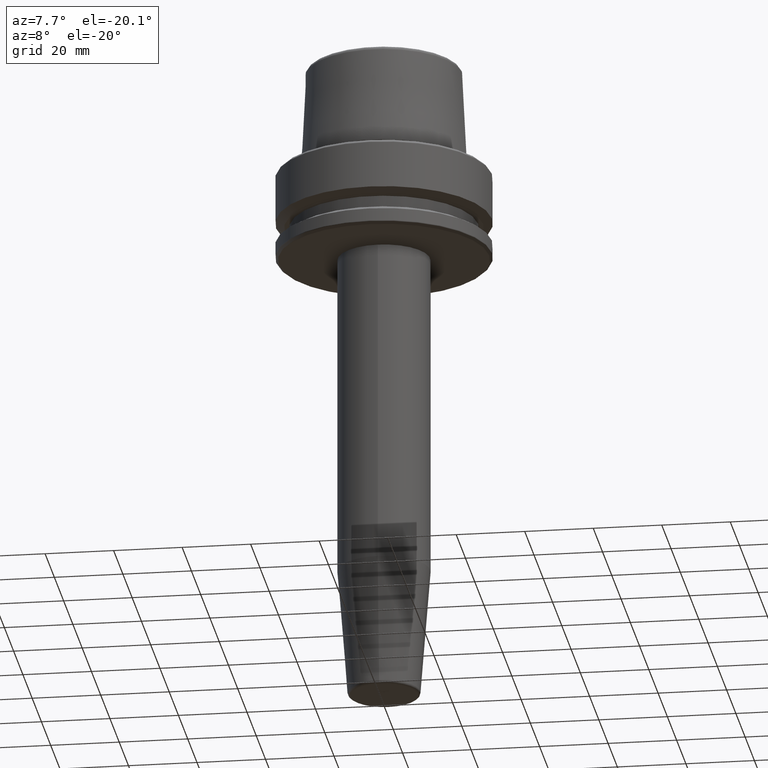
[diagram: clean part render]
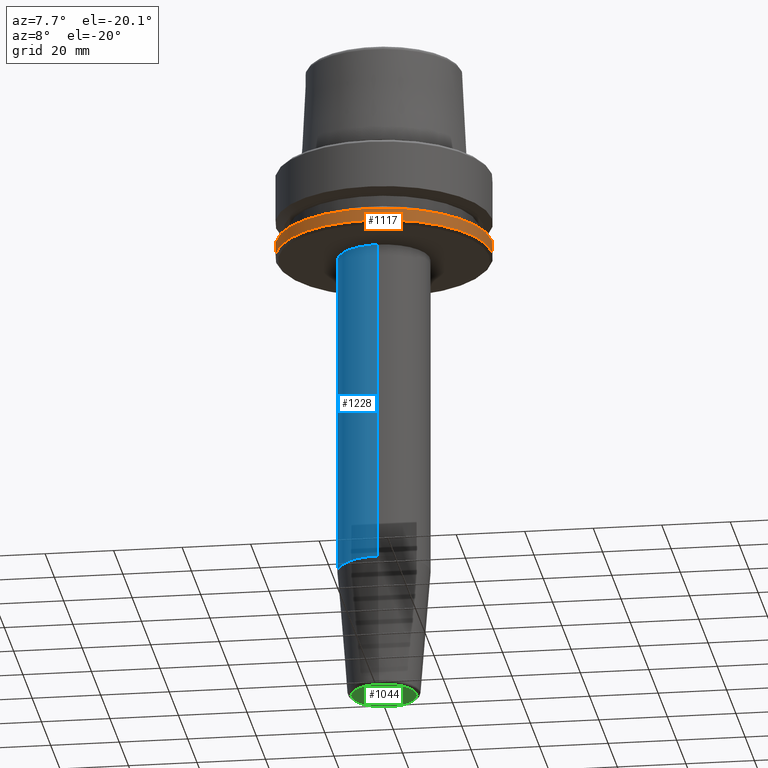
[diagram: same view with three faces highlighted in distinct colors, each labeled with its STEP entity id]
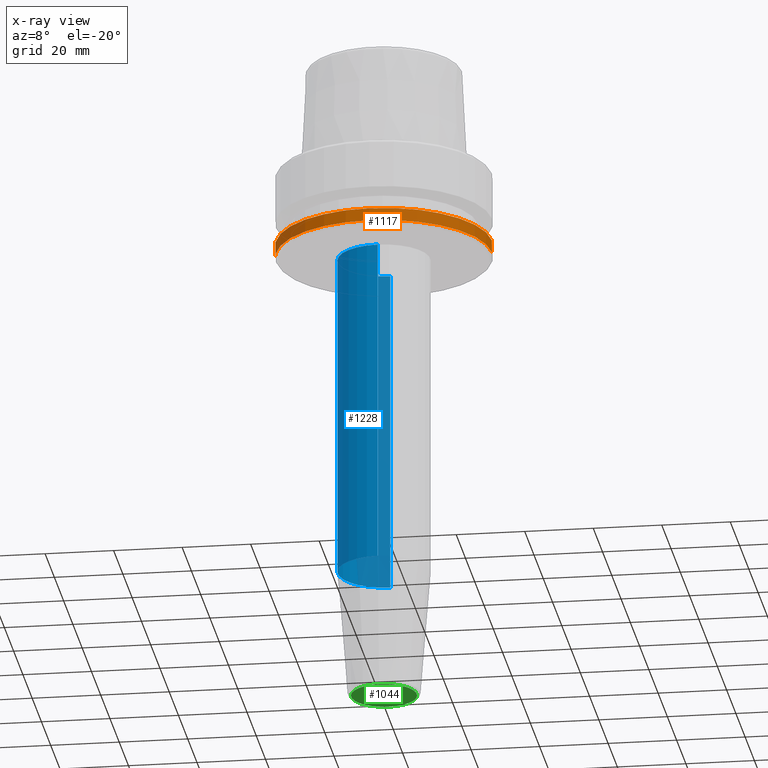
[diagram: x-ray of the same camera — body ghosted, the three highlighted faces saturated]
A machine part, auxiliary view with three faces highlighted in distinct colors.
The next image is the same camera in x-ray (body ghosted, the three faces saturated) — at least one of them is partly hidden behind the body in this view.
Their STEP definitions:

[orange] entity #1117 — the highlighted cylindrical surface (partial cylindrical patch) has radius 31.5 mm, axis along (-0, -0, 1).
#2 = VERTEX_POINT ( 'NONE', #214 ) ;
#14 = VECTOR ( 'NONE', #495, 1000.000000000000000 ) ;
#47 = CARTESIAN_POINT ( 'NONE',  ( 31.50000000000000000, 0.0000000000000000000, 78.96908074195309300 ) ) ;
#53 = CARTESIAN_POINT ( 'NONE',  ( 0.0000000000000000000, 0.0000000000000000000, -25.03431457505077200 ) ) ;
#74 = CARTESIAN_POINT ( 'NONE',  ( 0.0000000000000000000, 0.0000000000000000000, 78.96908074195309300 ) ) ;
#118 = EDGE_CURVE ( 'NONE', #1094, #955, #372, .T. ) ;
#205 = ORIENTED_EDGE ( 'NONE', *, *, #743, .T. ) ;
#214 = CARTESIAN_POINT ( 'NONE',  ( 31.50000000000000000, 0.0000000000000000000, -21.37749907475931700 ) ) ;
#259 = DIRECTION ( 'NONE',  ( -0.0000000000000000000, -0.0000000000000000000, 1.000000000000000000 ) ) ;
#308 = AXIS2_PLACEMENT_3D ( 'NONE', #74, #675, #1145 ) ;
#372 = CIRCLE ( 'NONE', #817, 31.50000000000000000 ) ;
#399 = CYLINDRICAL_SURFACE ( 'NONE', #308, 31.50000000000000000 ) ;
#431 = FACE_OUTER_BOUND ( 'NONE', #784, .T. ) ;
#439 = ORIENTED_EDGE ( 'NONE', *, *, #480, .F. ) ;
#480 = EDGE_CURVE ( 'NONE', #1094, #574, #532, .T. ) ;
#495 = DIRECTION ( 'NONE',  ( -0.0000000000000000000, -0.0000000000000000000, 1.000000000000000000 ) ) ;
#532 = LINE ( 'NONE', #594, #14 ) ;
#565 = CARTESIAN_POINT ( 'NONE',  ( 0.0000000000000000000, 0.0000000000000000000, -21.37749907475931700 ) ) ;
#574 = VERTEX_POINT ( 'NONE', #897 ) ;
#594 = CARTESIAN_POINT ( 'NONE',  ( -31.50000000000000000, 3.857637417314162700E-015, 78.96908074195309300 ) ) ;
#607 = ORIENTED_EDGE ( 'NONE', *, *, #1059, .F. ) ;
#660 = VECTOR ( 'NONE', #745, 1000.000000000000000 ) ;
#666 = DIRECTION ( 'NONE',  ( 1.000000000000000000, 0.0000000000000000000, 0.0000000000000000000 ) ) ;
#675 = DIRECTION ( 'NONE',  ( -0.0000000000000000000, -0.0000000000000000000, 1.000000000000000000 ) ) ;
#724 = CIRCLE ( 'NONE', #771, 31.50000000000000000 ) ;
#743 = EDGE_CURVE ( 'NONE', #955, #2, #1074, .T. ) ;
#745 = DIRECTION ( 'NONE',  ( -0.0000000000000000000, -0.0000000000000000000, 1.000000000000000000 ) ) ;
#771 = AXIS2_PLACEMENT_3D ( 'NONE', #565, #1229, #666 ) ;
#784 = EDGE_LOOP ( 'NONE', ( #439, #861, #205, #607 ) ) ;
#817 = AXIS2_PLACEMENT_3D ( 'NONE', #53, #259, #1150 ) ;
#861 = ORIENTED_EDGE ( 'NONE', *, *, #118, .T. ) ;
#897 = CARTESIAN_POINT ( 'NONE',  ( -31.50000000000000000, 3.857637417314162700E-015, -21.37749907475931700 ) ) ;
#955 = VERTEX_POINT ( 'NONE', #1209 ) ;
#1059 = EDGE_CURVE ( 'NONE', #574, #2, #724, .T. ) ;
#1074 = LINE ( 'NONE', #47, #660 ) ;
#1094 = VERTEX_POINT ( 'NONE', #1136 ) ;
#1117 = ADVANCED_FACE ( 'NONE', ( #431 ), #399, .T. ) ;
#1136 = CARTESIAN_POINT ( 'NONE',  ( -31.50000000000000000, 3.857637417314161900E-015, -25.03431457505077200 ) ) ;
#1145 = DIRECTION ( 'NONE',  ( 1.000000000000000000, 0.0000000000000000000, 0.0000000000000000000 ) ) ;
#1150 = DIRECTION ( 'NONE',  ( 1.000000000000000000, 0.0000000000000000000, 0.0000000000000000000 ) ) ;
#1209 = CARTESIAN_POINT ( 'NONE',  ( 31.50000000000000000, 0.0000000000000000000, -25.03431457505077200 ) ) ;
#1229 = DIRECTION ( 'NONE',  ( -0.0000000000000000000, -0.0000000000000000000, 1.000000000000000000 ) ) ;

[blue] entity #1228 — the highlighted cylindrical surface (partial cylindrical patch) has radius 13.5 mm, axis along (-0, 0, -1).
#36 = CARTESIAN_POINT ( 'NONE',  ( 1.653273178848925700E-015, -13.49999999999998600, -160.0000000000000000 ) ) ;
#59 = EDGE_CURVE ( 'NONE', #590, #558, #605, .T. ) ;
#90 = DIRECTION ( 'NONE',  ( 0.0000000000000000000, 1.000000000000000000, 0.0000000000000000000 ) ) ;
#98 = CARTESIAN_POINT ( 'NONE',  ( 1.653273178848925500E-015, 13.49999999999999300, -121.8813857914724800 ) ) ;
#106 = AXIS2_PLACEMENT_3D ( 'NONE', #125, #809, #219 ) ;
#125 = CARTESIAN_POINT ( 'NONE',  ( 0.0000000000000000000, 0.0000000000000000000, -25.99999999999999600 ) ) ;
#177 = CARTESIAN_POINT ( 'NONE',  ( 0.0000000000000000000, 3.505099468875800400E-015, -121.8813857914724800 ) ) ;
#219 = DIRECTION ( 'NONE',  ( 1.000000000000000000, 0.0000000000000000000, 0.0000000000000000000 ) ) ;
#232 = DIRECTION ( 'NONE',  ( -0.0000000000000000000, 3.655662087007025400E-017, -1.000000000000000000 ) ) ;
#280 = DIRECTION ( 'NONE',  ( 0.0000000000000000000, 1.000000000000000000, 0.0000000000000000000 ) ) ;
#289 = ORIENTED_EDGE ( 'NONE', *, *, #332, .F. ) ;
#296 = DIRECTION ( 'NONE',  ( -0.0000000000000000000, 3.655662087007025400E-017, -1.000000000000000000 ) ) ;
#332 = EDGE_CURVE ( 'NONE', #744, #558, #1167, .T. ) ;
#412 = AXIS2_PLACEMENT_3D ( 'NONE', #177, #866, #280 ) ;
#470 = CYLINDRICAL_SURFACE ( 'NONE', #995, 13.49999999999999100 ) ;
#539 = CARTESIAN_POINT ( 'NONE',  ( 0.0000000000000000000, -13.49999999999998600, -121.8813857914724800 ) ) ;
#558 = VERTEX_POINT ( 'NONE', #98 ) ;
#590 = VERTEX_POINT ( 'NONE', #611 ) ;
#605 = LINE ( 'NONE', #1003, #824 ) ;
#611 = CARTESIAN_POINT ( 'NONE',  ( 0.0000000000000000000, 13.49999999999999100, -25.99999999999999600 ) ) ;
#618 = EDGE_CURVE ( 'NONE', #1178, #590, #719, .T. ) ;
#649 = VECTOR ( 'NONE', #232, 1000.000000000000000 ) ;
#719 = CIRCLE ( 'NONE', #106, 13.49999999999999100 ) ;
#744 = VERTEX_POINT ( 'NONE', #539 ) ;
#809 = DIRECTION ( 'NONE',  ( 0.0000000000000000000, 0.0000000000000000000, -1.000000000000000000 ) ) ;
#824 = VECTOR ( 'NONE', #903, 1000.000000000000000 ) ;
#866 = DIRECTION ( 'NONE',  ( -0.0000000000000000000, 3.655662087007025400E-017, -1.000000000000000000 ) ) ;
#903 = DIRECTION ( 'NONE',  ( -0.0000000000000000000, 3.655662087007025400E-017, -1.000000000000000000 ) ) ;
#922 = EDGE_CURVE ( 'NONE', #1178, #744, #1154, .T. ) ;
#972 = CARTESIAN_POINT ( 'NONE',  ( 1.653273178848926100E-015, -13.49999999999999300, -25.99999999999999600 ) ) ;
#981 = CARTESIAN_POINT ( 'NONE',  ( 0.0000000000000000000, 4.898587196589414600E-015, -160.0000000000000000 ) ) ;
#995 = AXIS2_PLACEMENT_3D ( 'NONE', #981, #296, #90 ) ;
#1003 = CARTESIAN_POINT ( 'NONE',  ( 0.0000000000000000000, 13.49999999999999600, -160.0000000000000000 ) ) ;
#1069 = ORIENTED_EDGE ( 'NONE', *, *, #618, .T. ) ;
#1119 = ORIENTED_EDGE ( 'NONE', *, *, #59, .T. ) ;
#1130 = EDGE_LOOP ( 'NONE', ( #1185, #1069, #1119, #289 ) ) ;
#1154 = LINE ( 'NONE', #36, #649 ) ;
#1167 = CIRCLE ( 'NONE', #412, 13.49999999999998900 ) ;
#1178 = VERTEX_POINT ( 'NONE', #972 ) ;
#1185 = ORIENTED_EDGE ( 'NONE', *, *, #922, .F. ) ;
#1228 = ADVANCED_FACE ( 'NONE', ( #1232 ), #470, .T. ) ;
#1232 = FACE_OUTER_BOUND ( 'NONE', #1130, .T. ) ;

[green] entity #1044 — the highlighted planar face has unit normal (0, -0, 1).
#82 = VERTEX_POINT ( 'NONE', #181 ) ;
#97 = CARTESIAN_POINT ( 'NONE',  ( 1.233717534516112800E-015, -9.575609508341784700, -160.0000000000000000 ) ) ;
#181 = CARTESIAN_POINT ( 'NONE',  ( 0.0000000000000000000, 9.575609508341795400, -160.0000000000000000 ) ) ;
#207 = EDGE_CURVE ( 'NONE', #1237, #82, #808, .T. ) ;
#359 = DIRECTION ( 'NONE',  ( 0.0000000000000000000, -3.655662087007025400E-017, 1.000000000000000000 ) ) ;
#414 = DIRECTION ( 'NONE',  ( -0.0000000000000000000, 3.655662087007025400E-017, -1.000000000000000000 ) ) ;
#453 = DIRECTION ( 'NONE',  ( -0.0000000000000000000, 3.655662087007025400E-017, -1.000000000000000000 ) ) ;
#491 = FACE_OUTER_BOUND ( 'NONE', #757, .T. ) ;
#542 = AXIS2_PLACEMENT_3D ( 'NONE', #997, #414, #1086 ) ;
#569 = EDGE_CURVE ( 'NONE', #82, #1237, #1250, .T. ) ;
#662 = DIRECTION ( 'NONE',  ( 0.0000000000000000000, -1.000000000000000000, -3.655662087007025400E-017 ) ) ;
#733 = AXIS2_PLACEMENT_3D ( 'NONE', #1030, #453, #1126 ) ;
#757 = EDGE_LOOP ( 'NONE', ( #960, #1143 ) ) ;
#808 = CIRCLE ( 'NONE', #733, 9.575609508341790000 ) ;
#828 = AXIS2_PLACEMENT_3D ( 'NONE', #1133, #359, #662 ) ;
#960 = ORIENTED_EDGE ( 'NONE', *, *, #569, .T. ) ;
#997 = CARTESIAN_POINT ( 'NONE',  ( 0.0000000000000000000, 4.898587196589414600E-015, -160.0000000000000000 ) ) ;
#1030 = CARTESIAN_POINT ( 'NONE',  ( 0.0000000000000000000, 4.898587196589414600E-015, -160.0000000000000000 ) ) ;
#1038 = PLANE ( 'NONE',  #828 ) ;
#1044 = ADVANCED_FACE ( 'NONE', ( #491 ), #1038, .F. ) ;
#1086 = DIRECTION ( 'NONE',  ( 0.0000000000000000000, 1.000000000000000000, 0.0000000000000000000 ) ) ;
#1126 = DIRECTION ( 'NONE',  ( 0.0000000000000000000, 1.000000000000000000, 0.0000000000000000000 ) ) ;
#1133 = CARTESIAN_POINT ( 'NONE',  ( 0.0000000000000000000, 6.398357779053474100E-033, -160.0000000000000000 ) ) ;
#1143 = ORIENTED_EDGE ( 'NONE', *, *, #207, .T. ) ;
#1237 = VERTEX_POINT ( 'NONE', #97 ) ;
#1250 = CIRCLE ( 'NONE', #542, 9.575609508341790000 ) ;